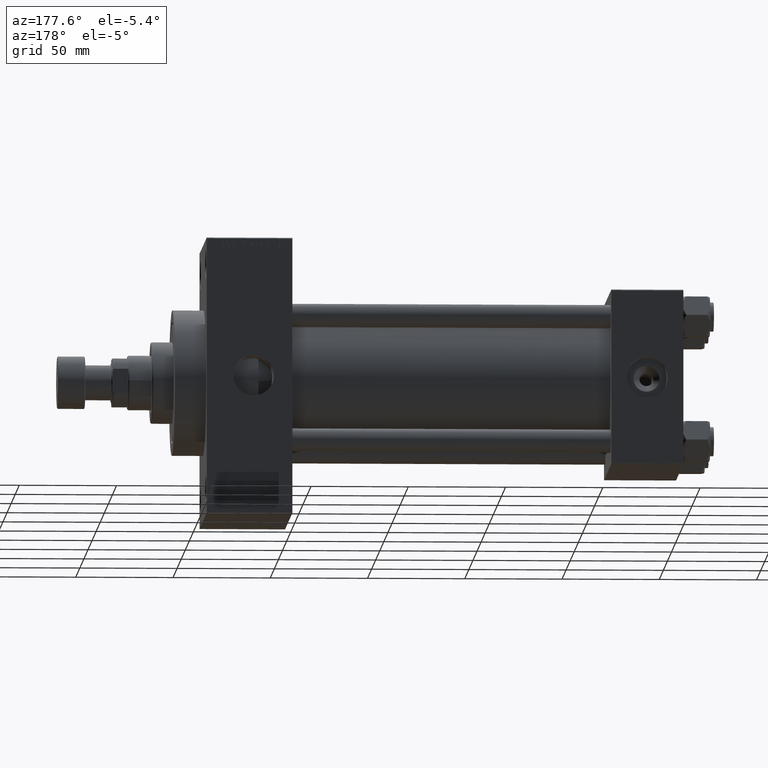
[diagram: clean part render]
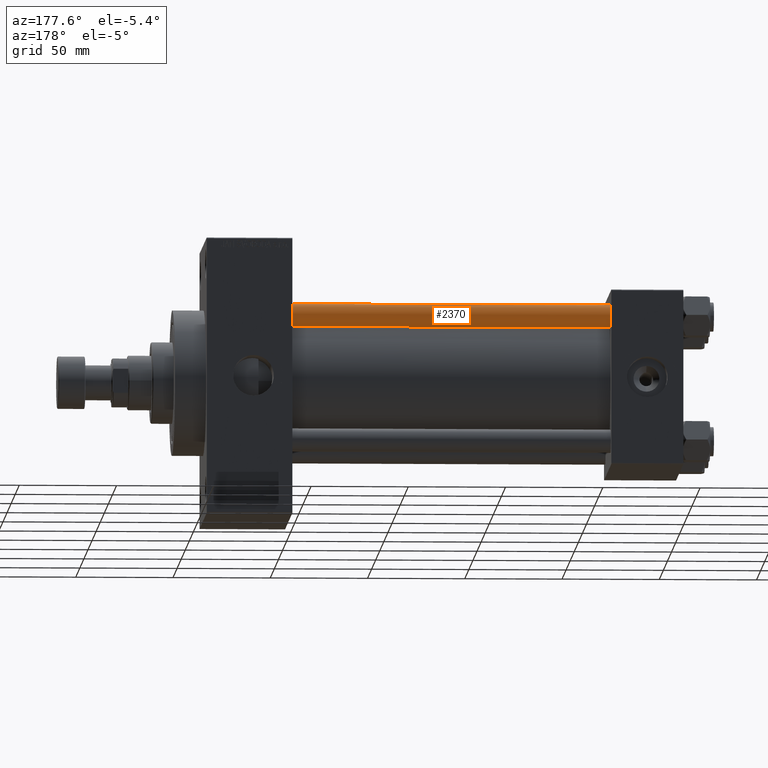
[diagram: same view with one face highlighted and labeled with its STEP entity id]
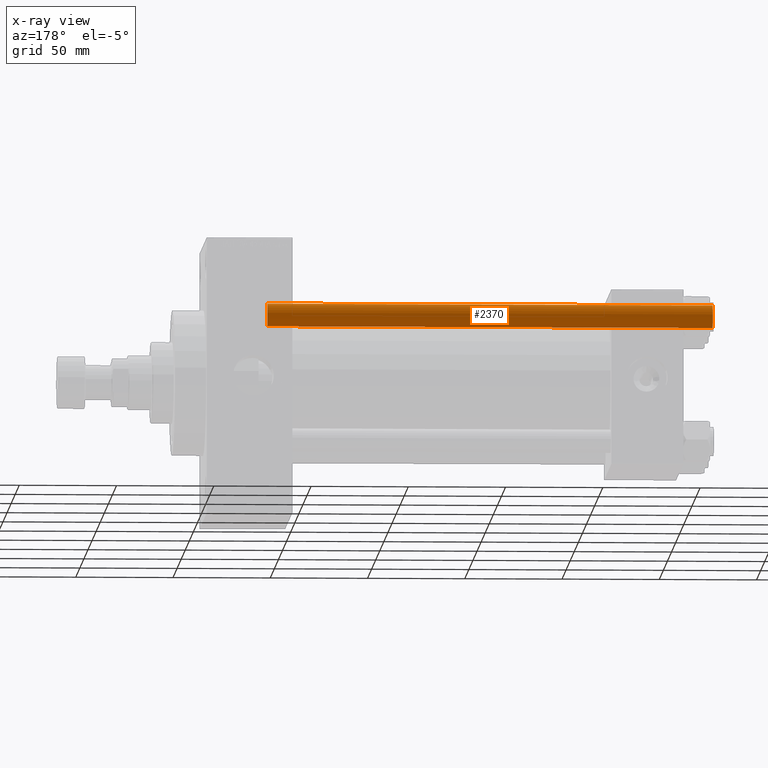
[diagram: x-ray of the same camera — body ghosted, the highlighted face saturated]
A machine part, auxiliary view. The second image highlights one B-rep face of the part: STEP entity #2370.
The next image is the same camera in x-ray: the body ghosted, the highlighted face saturated — about 0% of this face is hidden behind the body in this view.
In plain terms, the highlighted cylindrical surface (edge-blend (fillet) strip) has radius 6 mm, axis along (-1, -0, 0).
Its self-contained STEP definition (entity closure, byte-faithful):
#226 = AXIS2_PLACEMENT_3D ( 'NONE', #11603, #30003, #37026 ) ;
#1616 = CARTESIAN_POINT ( 'NONE',  ( -6.000000000000000888, 0.000000000000000000, 0.4999999999999726885 ) ) ;
#2370 = ADVANCED_FACE ( 'NONE', ( #15499 ), #7975, .T. ) ;
#4802 = VECTOR ( 'NONE', #40650, 1000.000000000000000 ) ;
#6342 = ORIENTED_EDGE ( 'NONE', *, *, #19617, .F. ) ;
#7015 = DIRECTION ( 'NONE',  ( 0.000000000000000000, 0.000000000000000000, -1.000000000000000000 ) ) ;
#7377 = ORIENTED_EDGE ( 'NONE', *, *, #16690, .T. ) ;
#7826 = AXIS2_PLACEMENT_3D ( 'NONE', #16079, #16307, #31771 ) ;
#7975 = CYLINDRICAL_SURFACE ( 'NONE', #226, 6.000000000000000888 ) ;
#11444 = VERTEX_POINT ( 'NONE', #29271 ) ;
#11603 = CARTESIAN_POINT ( 'NONE',  ( 0.000000000000000000, 0.000000000000000000, 230.0000000000000000 ) ) ;
#14036 = CARTESIAN_POINT ( 'NONE',  ( 6.000000000000000888, 7.347880794884120722E-16, 230.0000000000000000 ) ) ;
#15499 = FACE_OUTER_BOUND ( 'NONE', #45714, .T. ) ;
#16079 = CARTESIAN_POINT ( 'NONE',  ( 0.000000000000000000, 0.000000000000000000, 0.4999999999999726885 ) ) ;
#16307 = DIRECTION ( 'NONE',  ( -0.000000000000000000, -0.000000000000000000, 1.000000000000000000 ) ) ;
#16690 = EDGE_CURVE ( 'NONE', #28265, #40337, #37603, .T. ) ;
#19617 = EDGE_CURVE ( 'NONE', #28265, #35575, #42416, .T. ) ;
#19680 = CARTESIAN_POINT ( 'NONE',  ( -6.000000000000000888, 0.000000000000000000, 230.0000000000000000 ) ) ;
#22905 = AXIS2_PLACEMENT_3D ( 'NONE', #47210, #7015, #28806 ) ;
#24250 = DIRECTION ( 'NONE',  ( -0.000000000000000000, -0.000000000000000000, -1.000000000000000000 ) ) ;
#26872 = EDGE_CURVE ( 'NONE', #40337, #11444, #40409, .T. ) ;
#28265 = VERTEX_POINT ( 'NONE', #34525 ) ;
#28492 = EDGE_CURVE ( 'NONE', #11444, #35575, #30225, .T. ) ;
#28806 = DIRECTION ( 'NONE',  ( 1.000000000000000000, 0.000000000000000000, 0.000000000000000000 ) ) ;
#29271 = CARTESIAN_POINT ( 'NONE',  ( 6.000000000000000888, 7.347880794884120722E-16, 0.4999999999999726885 ) ) ;
#30003 = DIRECTION ( 'NONE',  ( -0.000000000000000000, -0.000000000000000000, -1.000000000000000000 ) ) ;
#30225 = CIRCLE ( 'NONE', #7826, 6.000000000000000888 ) ;
#30759 = CARTESIAN_POINT ( 'NONE',  ( 6.000000000000000888, 7.347880794884120722E-16, 229.5000000000000284 ) ) ;
#31771 = DIRECTION ( 'NONE',  ( 1.000000000000000000, 0.000000000000000000, 0.000000000000000000 ) ) ;
#34525 = CARTESIAN_POINT ( 'NONE',  ( -6.000000000000000888, 0.000000000000000000, 229.5000000000000284 ) ) ;
#35575 = VERTEX_POINT ( 'NONE', #1616 ) ;
#36519 = ORIENTED_EDGE ( 'NONE', *, *, #26872, .T. ) ;
#37026 = DIRECTION ( 'NONE',  ( -1.000000000000000000, 0.000000000000000000, 0.000000000000000000 ) ) ;
#37603 = CIRCLE ( 'NONE', #22905, 6.000000000000000888 ) ;
#40337 = VERTEX_POINT ( 'NONE', #30759 ) ;
#40409 = LINE ( 'NONE', #14036, #4802 ) ;
#40650 = DIRECTION ( 'NONE',  ( -0.000000000000000000, -0.000000000000000000, -1.000000000000000000 ) ) ;
#42416 = LINE ( 'NONE', #19680, #44630 ) ;
#43968 = ORIENTED_EDGE ( 'NONE', *, *, #28492, .T. ) ;
#44630 = VECTOR ( 'NONE', #24250, 1000.000000000000000 ) ;
#45714 = EDGE_LOOP ( 'NONE', ( #7377, #36519, #43968, #6342 ) ) ;
#47210 = CARTESIAN_POINT ( 'NONE',  ( 0.000000000000000000, 0.000000000000000000, 229.5000000000000284 ) ) ;